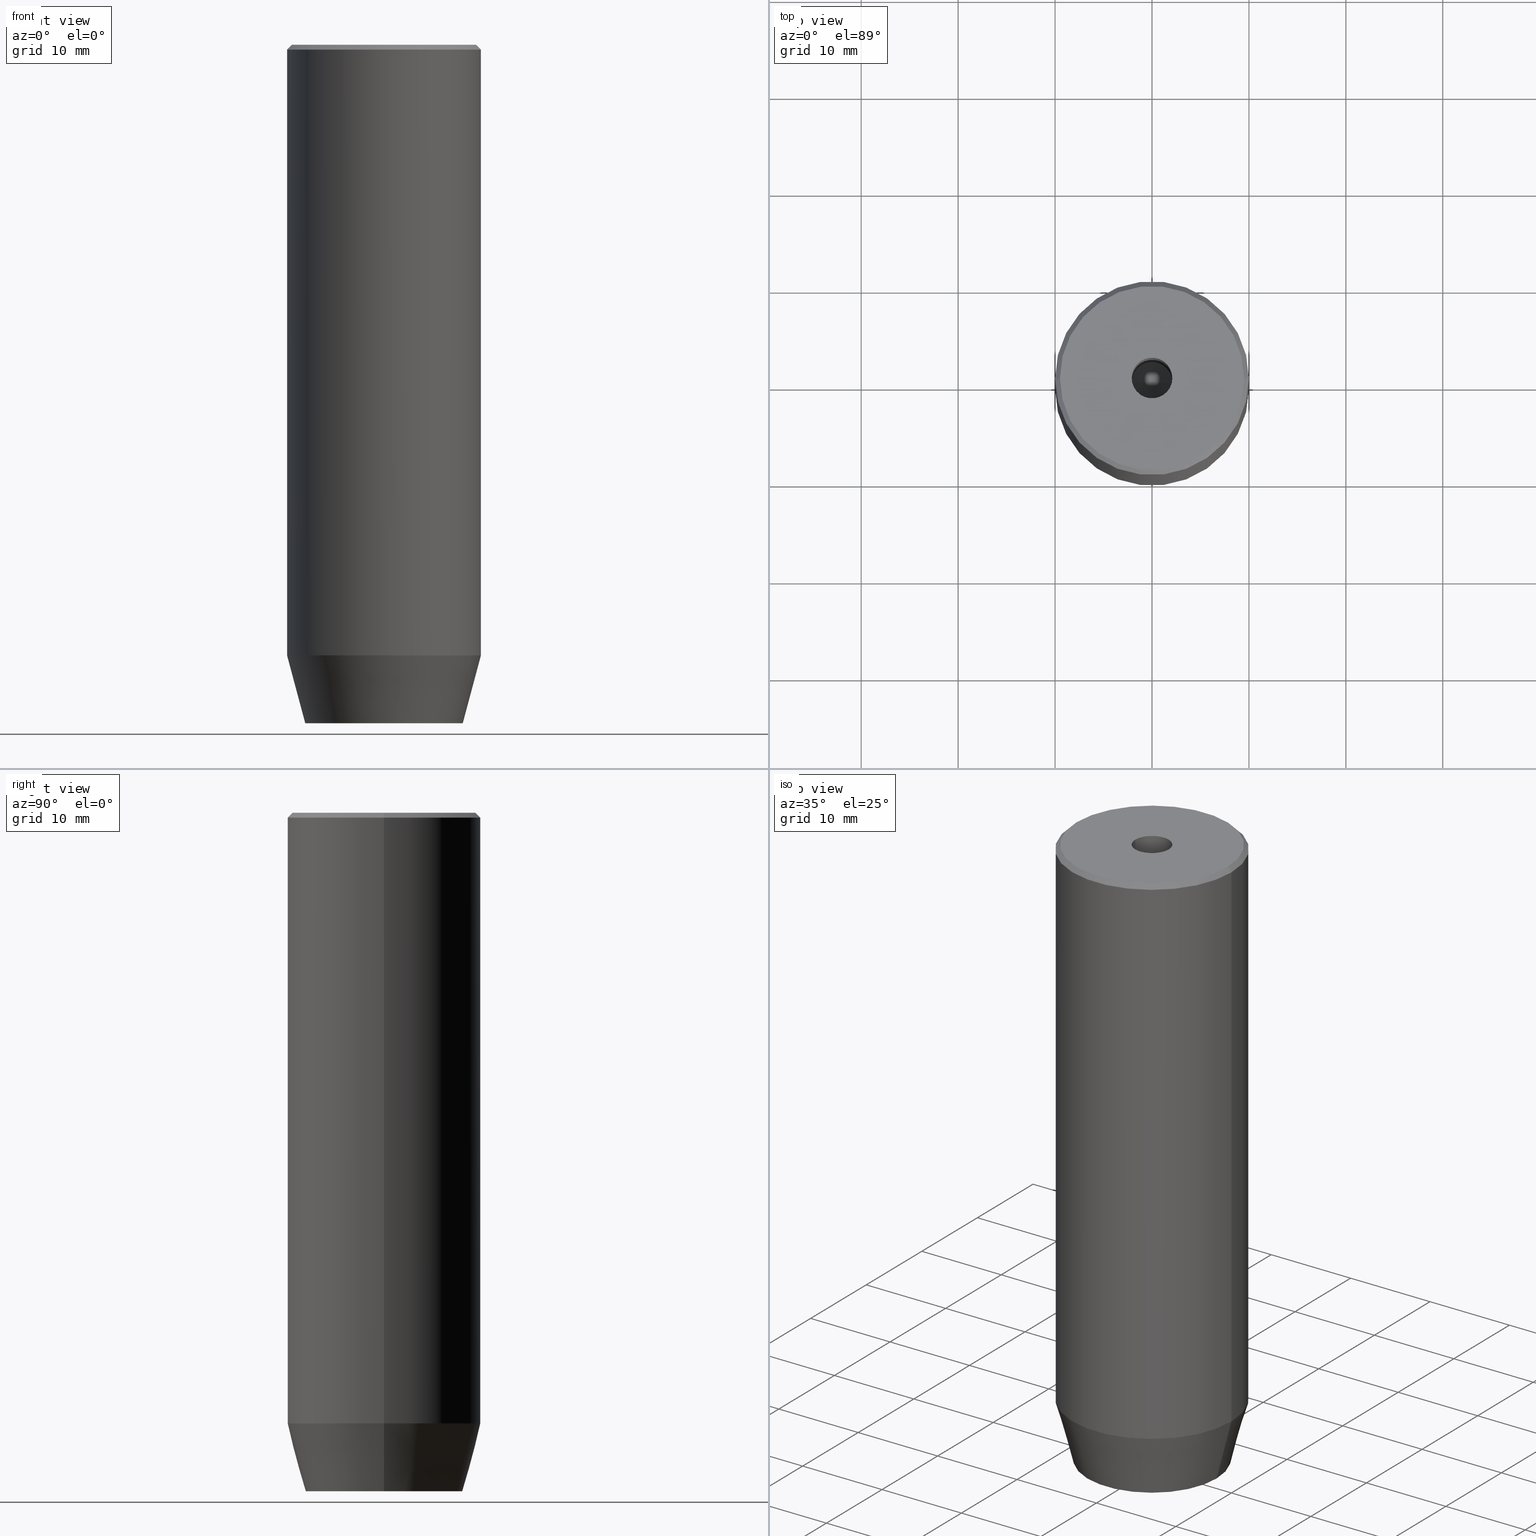
[diagram: canonical four-view strip — front | top / right | iso, engineering-drawing reading convention]
A machine part, canonical four-view strip (front | top / right | iso — engineering-drawing reading convention). The complete STEP part file that produces these views, byte-faithful:
ISO-10303-21;
HEADER;
FILE_DESCRIPTION (( 'STEP AP203' ),
    '1' );
FILE_NAME ('fe1a.STEP',
    '2024-01-02T19:06:16',
    ( '' ),
    ( '' ),
    'SwSTEP 2.0',
    'SolidWorks 2019',
    '' );
FILE_SCHEMA (( 'CONFIG_CONTROL_DESIGN' ));
ENDSEC;

DATA;
#1 = FACE_OUTER_BOUND ( 'NONE', #19, .T. ) ;
#2 = DIRECTION ( 'NONE',  ( 1.000000000000000000, 0.000000000000000000, 0.000000000000000000 ) ) ;
#3 = CARTESIAN_POINT ( 'NONE',  ( 4.000000000000000000, 0.000000000000000000, -70.00000000000000000 ) ) ;
#4 = LINE ( 'NONE', #438, #414 ) ;
#5 = VERTEX_POINT ( 'NONE', #530 ) ;
#6 = AXIS2_PLACEMENT_3D ( 'NONE', #398, #544, #2 ) ;
#7 = LINE ( 'NONE', #306, #576 ) ;
#8 = EDGE_LOOP ( 'NONE', ( #15, #422, #238 ) ) ;
#9 = DATE_TIME_ROLE ( 'creation_date' ) ;
#10 = DIRECTION ( 'NONE',  ( -0.000000000000000000, -0.000000000000000000, 1.000000000000000000 ) ) ;
#11 = PERSON ( 'NEUR�EN�', 'NEUR�EN�', 'NEUR�EN�', ('NEUR�EN�'), ('NEUR�EN�'), ('NEUR�EN�') ) ;
#12 = DIRECTION ( 'NONE',  ( -0.000000000000000000, -0.000000000000000000, 1.000000000000000000 ) ) ;
#13 = ORIENTED_EDGE ( 'NONE', *, *, #305, .T. ) ;
#14 = PRODUCT_DEFINITION ( 'NEZN�M�', '', #245, #535 ) ;
#15 = ORIENTED_EDGE ( 'NONE', *, *, #537, .F. ) ;
#16 = FACE_OUTER_BOUND ( 'NONE', #63, .T. ) ;
#17 = VERTEX_POINT ( 'NONE', #136 ) ;
#18 = CARTESIAN_POINT ( 'NONE',  ( 4.000000000000000000, 0.000000000000000000, -67.20000000000000284 ) ) ;
#19 = EDGE_LOOP ( 'NONE', ( #280, #480, #13, #341 ) ) ;
#20 = VECTOR ( 'NONE', #545, 1000.000000000000114 ) ;
#21 = EDGE_CURVE ( 'NONE', #17, #362, #302, .T. ) ;
#22 = DIRECTION ( 'NONE',  ( 1.000000000000000000, 0.000000000000000000, 0.000000000000000000 ) ) ;
#23 = EDGE_CURVE ( 'NONE', #227, #267, #385, .T. ) ;
#24 = EDGE_LOOP ( 'NONE', ( #180, #581, #41, #526, #49, #62 ) ) ;
#25 = DIRECTION ( 'NONE',  ( 1.000000000000000000, 0.000000000000000000, 0.000000000000000000 ) ) ;
#26 = ADVANCED_FACE ( 'NONE', ( #481 ), #431, .F. ) ;
#27 = PRODUCT_DEFINITION_SHAPE ( 'NONE', 'NONE',  #14 ) ;
#28 = AXIS2_PLACEMENT_3D ( 'NONE', #402, #12, #439 ) ;
#29 = DIRECTION ( 'NONE',  ( 1.000000000000000000, 0.000000000000000000, 0.000000000000000000 ) ) ;
#30 = ADVANCED_FACE ( 'NONE', ( #367, #457 ), #505, .T. ) ;
#31 = DIRECTION ( 'NONE',  ( 1.000000000000000000, 0.000000000000000000, 0.000000000000000000 ) ) ;
#32 = LINE ( 'NONE', #205, #372 ) ;
#33 = DIRECTION ( 'NONE',  ( 0.7071067811865525687, 8.659560562354995721E-17, -0.7071067811865425767 ) ) ;
#34 = CARTESIAN_POINT ( 'NONE',  ( 0.000000000000000000, 0.000000000000000000, -0.4999999999999917843 ) ) ;
#35 = DIRECTION ( 'NONE',  ( 0.000000000000000000, 1.000000000000000000, 0.000000000000000000 ) ) ;
#36 = AXIS2_PLACEMENT_3D ( 'NONE', #190, #547, #22 ) ;
#37 = ADVANCED_FACE ( 'NONE', ( #84 ), #208, .T. ) ;
#38 = VECTOR ( 'NONE', #33, 999.9999999999998863 ) ;
#39 = VERTEX_POINT ( 'NONE', #559 ) ;
#40 = ADVANCED_FACE ( 'NONE', ( #262 ), #163, .T. ) ;
#41 = ORIENTED_EDGE ( 'NONE', *, *, #353, .F. ) ;
#42 =( LENGTH_UNIT ( ) NAMED_UNIT ( * ) SI_UNIT ( .MILLI., .METRE. ) );
#43 = LINE ( 'NONE', #335, #338 ) ;
#44 = EDGE_CURVE ( 'NONE', #253, #206, #43, .T. ) ;
#45 = LINE ( 'NONE', #254, #399 ) ;
#46 = DIRECTION ( 'NONE',  ( -1.000000000000000000, 0.000000000000000000, 0.000000000000000000 ) ) ;
#47 = DIRECTION ( 'NONE',  ( 1.000000000000000000, 0.000000000000000000, 0.000000000000000000 ) ) ;
#48 = AXIS2_PLACEMENT_3D ( 'NONE', #316, #352, #241 ) ;
#49 = ORIENTED_EDGE ( 'NONE', *, *, #364, .F. ) ;
#50 = CONICAL_SURFACE ( 'NONE', #285, 10.00000000000000000, 0.2617993877991500740 ) ;
#51 = EDGE_CURVE ( 'NONE', #224, #17, #582, .T. ) ;
#52 = ORIENTED_EDGE ( 'NONE', *, *, #81, .F. ) ;
#53 = DIRECTION ( 'NONE',  ( 1.000000000000000000, 0.000000000000000000, 0.000000000000000000 ) ) ;
#54 = CARTESIAN_POINT ( 'NONE',  ( -4.000000000000000000, 2.309401076758503368, -67.20000000000000284 ) ) ;
#55 = ORIENTED_EDGE ( 'NONE', *, *, #44, .F. ) ;
#56 = DIRECTION ( 'NONE',  ( -0.000000000000000000, -0.000000000000000000, 1.000000000000000000 ) ) ;
#57 = EDGE_LOOP ( 'NONE', ( #541, #409, #498, #221 ) ) ;
#58 = DIRECTION ( 'NONE',  ( -0.000000000000000000, -0.000000000000000000, 1.000000000000000000 ) ) ;
#59 = DIRECTION ( 'NONE',  ( 1.000000000000000000, 0.000000000000000000, 0.000000000000000000 ) ) ;
#60 = VERTEX_POINT ( 'NONE', #299 ) ;
#61 = DATE_AND_TIME ( #68, #260 ) ;
#62 = ORIENTED_EDGE ( 'NONE', *, *, #231, .F. ) ;
#63 = EDGE_LOOP ( 'NONE', ( #104, #459, #223, #509 ) ) ;
#64 = CYLINDRICAL_SURFACE ( 'NONE', #6, 2.099999999999996980 ) ;
#65 = DIRECTION ( 'NONE',  ( -0.000000000000000000, -0.000000000000000000, 1.000000000000000000 ) ) ;
#66 = APPROVAL ( #313, 'NEUR�EN�' ) ;
#67 = VECTOR ( 'NONE', #427, 1000.000000000000000 ) ;
#68 = CALENDAR_DATE ( 2024, 2, 1 ) ;
#69 = AXIS2_PLACEMENT_3D ( 'NONE', #512, #556, #517 ) ;
#70 = CARTESIAN_POINT ( 'NONE',  ( -4.000000000000000000, 0.000000000000000000, -67.20000000000000284 ) ) ;
#71 = PLANE ( 'NONE',  #219 ) ;
#72 = CARTESIAN_POINT ( 'NONE',  ( -4.000000000000000000, -2.309401076758503368, -70.00000000000000000 ) ) ;
#73 = LINE ( 'NONE', #454, #296 ) ;
#74 = ORIENTED_EDGE ( 'NONE', *, *, #497, .F. ) ;
#75 = EDGE_LOOP ( 'NONE', ( #577, #450, #74, #174 ) ) ;
#76 = CARTESIAN_POINT ( 'NONE',  ( 4.336808689942017736E-16, -4.618802153517006737, -67.20000000000000284 ) ) ;
#77 = ORIENTED_EDGE ( 'NONE', *, *, #521, .T. ) ;
#78 = APPROVAL_ROLE ( '' ) ;
#79 = VERTEX_POINT ( 'NONE', #388 ) ;
#80 = ADVANCED_FACE ( 'NONE', ( #336 ), #524, .T. ) ;
#81 = EDGE_CURVE ( 'NONE', #79, #360, #263, .T. ) ;
#82 = EDGE_LOOP ( 'NONE', ( #308, #339, #504, #370 ) ) ;
#83 = DIRECTION ( 'NONE',  ( -0.000000000000000000, -0.000000000000000000, 1.000000000000000000 ) ) ;
#84 = FACE_OUTER_BOUND ( 'NONE', #244, .T. ) ;
#85 = LINE ( 'NONE', #413, #94 ) ;
#86 = CARTESIAN_POINT ( 'NONE',  ( 0.000000000000000000, 0.000000000000000000, -25.00000000000000000 ) ) ;
#87 = VECTOR ( 'NONE', #351, 1000.000000000000114 ) ;
#88 = EDGE_LOOP ( 'NONE', ( #471, #158, #436, #548 ) ) ;
#89 = DIRECTION ( 'NONE',  ( -0.000000000000000000, -0.000000000000000000, 1.000000000000000000 ) ) ;
#90 = ORIENTED_EDGE ( 'NONE', *, *, #261, .T. ) ;
#91 = FACE_OUTER_BOUND ( 'NONE', #82, .T. ) ;
#92 = CARTESIAN_POINT ( 'NONE',  ( 4.000000000000000000, -2.309401076758502480, -67.20000000000000284 ) ) ;
#93 = CC_DESIGN_PERSON_AND_ORGANIZATION_ASSIGNMENT ( #169, #437, ( #14 ) ) ;
#94 = VECTOR ( 'NONE', #240, 1000.000000000000000 ) ;
#95 = CIRCLE ( 'NONE', #570, 2.099999999999995648 ) ;
#96 = DIRECTION ( 'NONE',  ( -1.000000000000000000, 0.000000000000000000, -0.000000000000000000 ) ) ;
#97 = EDGE_CURVE ( 'NONE', #452, #102, #376, .T. ) ;
#98 = DIRECTION ( 'NONE',  ( 0.000000000000000000, -1.000000000000000000, 0.000000000000000000 ) ) ;
#99 = FACE_OUTER_BOUND ( 'NONE', #75, .T. ) ;
#100 = AXIS2_PLACEMENT_3D ( 'NONE', #178, #346, #312 ) ;
#101 = CARTESIAN_POINT ( 'NONE',  ( 0.000000000000000000, 0.000000000000000000, -63.00000000000000000 ) ) ;
#102 = VERTEX_POINT ( 'NONE', #168 ) ;
#103 = CALENDAR_DATE ( 2024, 2, 1 ) ;
#104 = ORIENTED_EDGE ( 'NONE', *, *, #137, .F. ) ;
#105 = FACE_OUTER_BOUND ( 'NONE', #462, .T. ) ;
#106 = CARTESIAN_POINT ( 'NONE',  ( 2.168404344971008868E-16, 4.618802153517005848, -70.00000000000000000 ) ) ;
#107 = CONICAL_SURFACE ( 'NONE', #324, 2.099999999999995648, 1.029744258676651647 ) ;
#108 = ORIENTED_EDGE ( 'NONE', *, *, #510, .F. ) ;
#109 = CC_DESIGN_APPROVAL ( #288, ( #245 ) ) ;
#110 = LINE ( 'NONE', #18, #373 ) ;
#111 = LINE ( 'NONE', #76, #118 ) ;
#112 = ADVANCED_FACE ( 'NONE', ( #467 ), #256, .F. ) ;
#113 = EDGE_LOOP ( 'NONE', ( #384, #303, #149, #77 ) ) ;
#114 = EDGE_LOOP ( 'NONE', ( #482, #425, #249, #55 ) ) ;
#115 = ORIENTED_EDGE ( 'NONE', *, *, #343, .T. ) ;
#116 = EDGE_CURVE ( 'NONE', #60, #525, #563, .T. ) ;
#117 = EDGE_LOOP ( 'NONE', ( #382, #347 ) ) ;
#118 = VECTOR ( 'NONE', #574, 1000.000000000000000 ) ;
#119 = VECTOR ( 'NONE', #284, 999.9999999999998863 ) ;
#120 = PERSON_AND_ORGANIZATION ( #11, #472 ) ;
#121 = ADVANCED_FACE ( 'NONE', ( #154, #515 ), #536, .T. ) ;
#122 = FACE_OUTER_BOUND ( 'NONE', #295, .T. ) ;
#123 = DIRECTION ( 'NONE',  ( -0.5000000000000003331, -0.8660254037844385966, 0.000000000000000000 ) ) ;
#124 = LINE ( 'NONE', #417, #38 ) ;
#125 = ORIENTED_EDGE ( 'NONE', *, *, #375, .F. ) ;
#126 = VECTOR ( 'NONE', #469, 1000.000000000000000 ) ;
#127 = CARTESIAN_POINT ( 'NONE',  ( 0.000000000000000000, 0.000000000000000000, -63.00000000000000000 ) ) ;
#128 = CONICAL_SURFACE ( 'NONE', #196, 2.099999999999995648, 1.029744258676651647 ) ;
#129 = CARTESIAN_POINT ( 'NONE',  ( 0.000000000000000000, 0.000000000000000000, 0.000000000000000000 ) ) ;
#130 = ADVANCED_FACE ( 'NONE', ( #175 ), #107, .F. ) ;
#131 = DIRECTION ( 'NONE',  ( -0.000000000000000000, -0.000000000000000000, 1.000000000000000000 ) ) ;
#132 = CONICAL_SURFACE ( 'NONE', #282, 9.500000000000001776, 0.7853981633974552734 ) ;
#133 = EDGE_CURVE ( 'NONE', #525, #206, #217, .T. ) ;
#134 = LOCAL_TIME ( 20, 6, 16.00000000000000000, #565 ) ;
#135 = CARTESIAN_POINT ( 'NONE',  ( 0.000000000000000000, 0.000000000000000000, -1.990051048614449116E-16 ) ) ;
#136 = CARTESIAN_POINT ( 'NONE',  ( 4.000000000000000000, -2.309401076758502480, -70.00000000000000000 ) ) ;
#137 = EDGE_CURVE ( 'NONE', #176, #139, #527, .T. ) ;
#138 = DIRECTION ( 'NONE',  ( -0.000000000000000000, -0.000000000000000000, 1.000000000000000000 ) ) ;
#139 = VERTEX_POINT ( 'NONE', #390 ) ;
#140 = AXIS2_PLACEMENT_3D ( 'NONE', #424, #131, #331 ) ;
#141 = DATE_AND_TIME ( #143, #186 ) ;
#142 = EDGE_CURVE ( 'NONE', #139, #195, #586, .T. ) ;
#143 = CALENDAR_DATE ( 2024, 2, 1 ) ;
#144 = DIRECTION ( 'NONE',  ( -0.8571673007021108903, 1.049727191138616847E-16, 0.5150380749100565980 ) ) ;
#145 = CARTESIAN_POINT ( 'NONE',  ( 9.500000000000001776, 1.194030629168669469E-15, 0.000000000000000000 ) ) ;
#146 = CARTESIAN_POINT ( 'NONE',  ( 0.000000000000000000, 0.000000000000000000, -70.00000000000000000 ) ) ;
#147 = EDGE_CURVE ( 'NONE', #531, #79, #345, .T. ) ;
#148 = AXIS2_PLACEMENT_3D ( 'NONE', #146, #304, #59 ) ;
#149 = ORIENTED_EDGE ( 'NONE', *, *, #434, .F. ) ;
#150 =( GEOMETRIC_REPRESENTATION_CONTEXT ( 3 ) GLOBAL_UNCERTAINTY_ASSIGNED_CONTEXT ( ( #307 ) ) GLOBAL_UNIT_ASSIGNED_CONTEXT ( ( #42, #479, #488 ) ) REPRESENTATION_CONTEXT ( 'NONE', 'WORKASPACE' ) );
#151 = EDGE_CURVE ( 'NONE', #232, #5, #540, .T. ) ;
#152 = ORIENTED_EDGE ( 'NONE', *, *, #247, .T. ) ;
#153 = PERSON_AND_ORGANIZATION_ROLE ( 'classification_officer' ) ;
#154 = FACE_BOUND ( 'NONE', #551, .T. ) ;
#155 = LINE ( 'NONE', #513, #349 ) ;
#156 = PERSON_AND_ORGANIZATION ( #11, #472 ) ;
#157 = CC_DESIGN_PERSON_AND_ORGANIZATION_ASSIGNMENT ( #552, #153, ( #555 ) ) ;
#158 = ORIENTED_EDGE ( 'NONE', *, *, #484, .F. ) ;
#159 = CARTESIAN_POINT ( 'NONE',  ( 4.000000000000000000, 2.309401076758503368, -67.20000000000000284 ) ) ;
#160 = DIRECTION ( 'NONE',  ( -0.000000000000000000, -0.000000000000000000, 1.000000000000000000 ) ) ;
#161 = AXIS2_PLACEMENT_3D ( 'NONE', #369, #564, #235 ) ;
#162 = CARTESIAN_POINT ( 'NONE',  ( -2.000000000000000888, -3.464101615137754386, -67.20000000000000284 ) ) ;
#163 = CYLINDRICAL_SURFACE ( 'NONE', #140, 10.00000000000000000 ) ;
#164 = CC_DESIGN_APPROVAL ( #66, ( #555 ) ) ;
#165 = EDGE_CURVE ( 'NONE', #224, #232, #4, .T. ) ;
#166 = DIRECTION ( 'NONE',  ( 1.000000000000000000, 0.000000000000000000, 0.000000000000000000 ) ) ;
#167 = ORIENTED_EDGE ( 'NONE', *, *, #165, .T. ) ;
#168 = CARTESIAN_POINT ( 'NONE',  ( 10.00000000000000000, 0.000000000000000000, -63.00000000000000000 ) ) ;
#169 = PERSON_AND_ORGANIZATION ( #11, #472 ) ;
#170 = ORIENTED_EDGE ( 'NONE', *, *, #323, .F. ) ;
#171 = ORIENTED_EDGE ( 'NONE', *, *, #323, .T. ) ;
#172 = DIRECTION ( 'NONE',  ( -0.000000000000000000, -0.000000000000000000, -1.000000000000000000 ) ) ;
#173 = CIRCLE ( 'NONE', #28, 8.124355652982135467 ) ;
#174 = ORIENTED_EDGE ( 'NONE', *, *, #193, .T. ) ;
#175 = FACE_OUTER_BOUND ( 'NONE', #8, .T. ) ;
#176 = VERTEX_POINT ( 'NONE', #145 ) ;
#177 = CARTESIAN_POINT ( 'NONE',  ( -9.500000000000001776, 0.000000000000000000, 0.000000000000000000 ) ) ;
#178 = CARTESIAN_POINT ( 'NONE',  ( 0.000000000000000000, 0.000000000000000000, 0.000000000000000000 ) ) ;
#179 = DIRECTION ( 'NONE',  ( -0.5000000000000000000, 0.8660254037844387076, 0.000000000000000000 ) ) ;
#180 = ORIENTED_EDGE ( 'NONE', *, *, #401, .F. ) ;
#181 = ORIENTED_EDGE ( 'NONE', *, *, #151, .T. ) ;
#182 = LINE ( 'NONE', #348, #377 ) ;
#183 = DIRECTION ( 'NONE',  ( 0.000000000000000000, -1.000000000000000000, 0.000000000000000000 ) ) ;
#184 = VECTOR ( 'NONE', #172, 1000.000000000000000 ) ;
#185 = CC_DESIGN_PERSON_AND_ORGANIZATION_ASSIGNMENT ( #561, #203, ( #245 ) ) ;
#186 = LOCAL_TIME ( 20, 6, 16.00000000000000000, #228 ) ;
#187 = DIRECTION ( 'NONE',  ( 1.000000000000000000, 0.000000000000000000, 0.000000000000000000 ) ) ;
#188 = LINE ( 'NONE', #225, #340 ) ;
#189 = ORIENTED_EDGE ( 'NONE', *, *, #573, .T. ) ;
#190 = CARTESIAN_POINT ( 'NONE',  ( 0.000000000000000000, 0.000000000000000000, 0.000000000000000000 ) ) ;
#191 = ORIENTED_EDGE ( 'NONE', *, *, #81, .T. ) ;
#192 = CARTESIAN_POINT ( 'NONE',  ( 2.099999999999995648, 0.000000000000000000, -25.00000000000000000 ) ) ;
#193 = EDGE_CURVE ( 'NONE', #5, #580, #73, .T. ) ;
#194 = CLOSED_SHELL ( 'NONE', ( #383, #489, #549, #458, #37, #30, #121, #40, #329, #315, #26, #395, #112, #406, #411, #465, #80, #130, #404 ) ) ;
#195 = VERTEX_POINT ( 'NONE', #320 ) ;
#196 = AXIS2_PLACEMENT_3D ( 'NONE', #86, #416, #29 ) ;
#197 = DIRECTION ( 'NONE',  ( -1.000000000000000000, 0.000000000000000000, -0.000000000000000000 ) ) ;
#198 = CARTESIAN_POINT ( 'NONE',  ( 2.099999999999998757, 0.000000000000000000, -1.990051048614449116E-16 ) ) ;
#199 = APPLICATION_CONTEXT ( 'configuration controlled 3d designs of mechanical parts and assemblies' ) ;
#200 = APPROVAL_DATE_TIME ( #410, #288 ) ;
#201 = ORIENTED_EDGE ( 'NONE', *, *, #518, .F. ) ;
#202 = DIRECTION ( 'NONE',  ( 0.000000000000000000, 0.000000000000000000, -1.000000000000000000 ) ) ;
#203 = PERSON_AND_ORGANIZATION_ROLE ( 'creator' ) ;
#204 = APPLICATION_PROTOCOL_DEFINITION ( 'international standard', 'config_control_design', 1994, #366 ) ;
#205 = CARTESIAN_POINT ( 'NONE',  ( -10.00000000000000000, 1.224646799147353256E-15, -63.00000000000000000 ) ) ;
#206 = VERTEX_POINT ( 'NONE', #198 ) ;
#207 = DIRECTION ( 'NONE',  ( -0.8660254037844385966, 0.5000000000000001110, 0.000000000000000000 ) ) ;
#208 = CYLINDRICAL_SURFACE ( 'NONE', #48, 10.00000000000000000 ) ;
#209 = APPROVAL_PERSON_ORGANIZATION ( #120, #288, #448 ) ;
#210 = CARTESIAN_POINT ( 'NONE',  ( 2.000000000000000444, 3.464101615137754386, -67.20000000000000284 ) ) ;
#211 = EDGE_CURVE ( 'NONE', #428, #195, #251, .T. ) ;
#212 = ORIENTED_EDGE ( 'NONE', *, *, #23, .F. ) ;
#213 = CARTESIAN_POINT ( 'NONE',  ( 0.000000000000000000, 0.000000000000000000, -63.00000000000000000 ) ) ;
#214 = CARTESIAN_POINT ( 'NONE',  ( -4.000000000000000000, 2.309401076758503368, -67.20000000000000284 ) ) ;
#215 = CC_DESIGN_PERSON_AND_ORGANIZATION_ASSIGNMENT ( #449, #405, ( #245 ) ) ;
#216 = DATE_TIME_ROLE ( 'classification_date' ) ;
#217 = CIRCLE ( 'NONE', #333, 2.099999999999998757 ) ;
#218 = DIRECTION ( 'NONE',  ( -0.000000000000000000, -0.000000000000000000, 1.000000000000000000 ) ) ;
#219 = AXIS2_PLACEMENT_3D ( 'NONE', #583, #392, #230 ) ;
#220 = EDGE_CURVE ( 'NONE', #139, #176, #242, .T. ) ;
#221 = ORIENTED_EDGE ( 'NONE', *, *, #239, .T. ) ;
#222 = AXIS2_PLACEMENT_3D ( 'NONE', #378, #478, #96 ) ;
#223 = ORIENTED_EDGE ( 'NONE', *, *, #445, .F. ) ;
#224 = VERTEX_POINT ( 'NONE', #363 ) ;
#225 = CARTESIAN_POINT ( 'NONE',  ( -2.099999999999995648, 2.571758278209436040E-16, -25.00000000000000000 ) ) ;
#226 = CARTESIAN_POINT ( 'NONE',  ( -2.000000000000000000, 3.464101615137754830, -67.20000000000000284 ) ) ;
#227 = VERTEX_POINT ( 'NONE', #359 ) ;
#228 = COORDINATED_UNIVERSAL_TIME_OFFSET ( 1, 0, .AHEAD. ) ;
#229 = CARTESIAN_POINT ( 'NONE',  ( -2.000000000000000888, -3.464101615137754386, -67.20000000000000284 ) ) ;
#230 = DIRECTION ( 'NONE',  ( 0.8660254037844384856, 0.5000000000000002220, 0.000000000000000000 ) ) ;
#231 = EDGE_CURVE ( 'NONE', #572, #360, #155, .T. ) ;
#232 = VERTEX_POINT ( 'NONE', #502 ) ;
#233 = CARTESIAN_POINT ( 'NONE',  ( 0.000000000000000000, 0.000000000000000000, 0.000000000000000000 ) ) ;
#234 = VECTOR ( 'NONE', #523, 1000.000000000000000 ) ;
#235 = DIRECTION ( 'NONE',  ( 1.000000000000000000, 0.000000000000000000, 0.000000000000000000 ) ) ;
#236 = DIRECTION ( 'NONE',  ( 0.000000000000000000, 1.000000000000000000, 0.000000000000000000 ) ) ;
#237 = CARTESIAN_POINT ( 'NONE',  ( 0.000000000000000000, 0.000000000000000000, -1.990051048614449116E-16 ) ) ;
#238 = ORIENTED_EDGE ( 'NONE', *, *, #484, .T. ) ;
#239 = EDGE_CURVE ( 'NONE', #232, #362, #111, .T. ) ;
#240 = DIRECTION ( 'NONE',  ( -0.000000000000000000, -0.000000000000000000, 1.000000000000000000 ) ) ;
#241 = DIRECTION ( 'NONE',  ( 1.000000000000000000, 0.000000000000000000, 0.000000000000000000 ) ) ;
#242 = CIRCLE ( 'NONE', #36, 9.500000000000001776 ) ;
#243 = AXIS2_PLACEMENT_3D ( 'NONE', #101, #499, #344 ) ;
#244 = EDGE_LOOP ( 'NONE', ( #171, #271, #380, #283 ) ) ;
#245 = PRODUCT_DEFINITION_FORMATION_WITH_SPECIFIED_SOURCE ( 'LIBOVOLN�', '', #337, .NOT_KNOWN. ) ;
#246 = CALENDAR_DATE ( 2024, 2, 1 ) ;
#247 = EDGE_CURVE ( 'NONE', #227, #452, #32, .T. ) ;
#248 = ORIENTED_EDGE ( 'NONE', *, *, #434, .T. ) ;
#249 = ORIENTED_EDGE ( 'NONE', *, *, #133, .T. ) ;
#250 = APPROVAL_STATUS ( 'not_yet_approved' ) ;
#251 = CIRCLE ( 'NONE', #161, 10.00000000000000000 ) ;
#252 = EDGE_CURVE ( 'NONE', #102, #428, #85, .T. ) ;
#253 = VERTEX_POINT ( 'NONE', #473 ) ;
#254 = CARTESIAN_POINT ( 'NONE',  ( -4.000000000000000000, 0.000000000000000000, -70.00000000000000000 ) ) ;
#255 = DIRECTION ( 'NONE',  ( -1.000000000000000000, 0.000000000000000000, 0.000000000000000000 ) ) ;
#256 = PLANE ( 'NONE',  #500 ) ;
#257 = ORIENTED_EDGE ( 'NONE', *, *, #364, .T. ) ;
#258 = VECTOR ( 'NONE', #314, 1000.000000000000000 ) ;
#259 = CARTESIAN_POINT ( 'NONE',  ( 0.000000000000000000, 0.000000000000000000, -63.00000000000000000 ) ) ;
#260 = LOCAL_TIME ( 20, 6, 16.00000000000000000, #492 ) ;
#261 = EDGE_CURVE ( 'NONE', #531, #572, #298, .T. ) ;
#262 = FACE_OUTER_BOUND ( 'NONE', #397, .T. ) ;
#263 = LINE ( 'NONE', #159, #126 ) ;
#264 = ADVANCED_BREP_SHAPE_REPRESENTATION ( 'fe1a', ( #441, #408 ), #150 ) ;
#265 = ORIENTED_EDGE ( 'NONE', *, *, #587, .F. ) ;
#266 = EDGE_CURVE ( 'NONE', #580, #39, #45, .T. ) ;
#267 = VERTEX_POINT ( 'NONE', #418 ) ;
#268 = CARTESIAN_POINT ( 'NONE',  ( 2.000000000000000444, 3.464101615137754386, -67.20000000000000284 ) ) ;
#269 = DATE_AND_TIME ( #103, #514 ) ;
#270 = FACE_OUTER_BOUND ( 'NONE', #114, .T. ) ;
#271 = ORIENTED_EDGE ( 'NONE', *, *, #518, .T. ) ;
#272 = LINE ( 'NONE', #70, #423 ) ;
#273 = CARTESIAN_POINT ( 'NONE',  ( 4.000000000000000000, 2.309401076758503368, -70.00000000000000000 ) ) ;
#274 = DIRECTION ( 'NONE',  ( -0.8660254037844385966, -0.4999999999999999445, 0.000000000000000000 ) ) ;
#275 = FACE_OUTER_BOUND ( 'NONE', #88, .T. ) ;
#276 = VECTOR ( 'NONE', #435, 999.9999999999998863 ) ;
#277 = CARTESIAN_POINT ( 'NONE',  ( -2.099999999999998757, 2.571758278209440478E-16, -1.990051048614449116E-16 ) ) ;
#278 = CIRCLE ( 'NONE', #327, 2.099999999999998757 ) ;
#279 = EDGE_LOOP ( 'NONE', ( #125, #543, #189 ) ) ;
#280 = ORIENTED_EDGE ( 'NONE', *, *, #247, .F. ) ;
#281 = PERSON_AND_ORGANIZATION ( #11, #472 ) ;
#282 = AXIS2_PLACEMENT_3D ( 'NONE', #129, #466, #255 ) ;
#283 = ORIENTED_EDGE ( 'NONE', *, *, #252, .F. ) ;
#284 = DIRECTION ( 'NONE',  ( 0.8660254037844387076, 0.5000000000000001110, 0.000000000000000000 ) ) ;
#285 = AXIS2_PLACEMENT_3D ( 'NONE', #213, #516, #374 ) ;
#286 = CALENDAR_DATE ( 2024, 2, 1 ) ;
#287 = PERSON_AND_ORGANIZATION_ROLE ( 'design_owner' ) ;
#288 = APPROVAL ( #558, 'NEUR�EN�' ) ;
#289 = VERTEX_POINT ( 'NONE', #214 ) ;
#290 = AXIS2_PLACEMENT_3D ( 'NONE', #403, #562, #197 ) ;
#291 = APPROVAL_PERSON_ORGANIZATION ( #281, #66, #78 ) ;
#292 = ORIENTED_EDGE ( 'NONE', *, *, #252, .T. ) ;
#293 = FACE_OUTER_BOUND ( 'NONE', #321, .T. ) ;
#294 = CARTESIAN_POINT ( 'NONE',  ( 10.00000000000000000, 0.000000000000000000, -63.00000000000000000 ) ) ;
#295 = EDGE_LOOP ( 'NONE', ( #557, #52, #475, #90 ) ) ;
#296 = VECTOR ( 'NONE', #356, 1000.000000000000000 ) ;
#297 = CC_DESIGN_APPROVAL ( #379, ( #14 ) ) ;
#298 = LINE ( 'NONE', #477, #67 ) ;
#299 = CARTESIAN_POINT ( 'NONE',  ( -2.099999999999995648, 2.571758278209436040E-16, -25.00000000000000000 ) ) ;
#300 = CARTESIAN_POINT ( 'NONE',  ( 0.000000000000000000, 0.000000000000000000, -25.00000000000000000 ) ) ;
#301 = CARTESIAN_POINT ( 'NONE',  ( 0.000000000000000000, 0.000000000000000000, -25.00000000000000000 ) ) ;
#302 = LINE ( 'NONE', #355, #87 ) ;
#303 = ORIENTED_EDGE ( 'NONE', *, *, #261, .F. ) ;
#304 = DIRECTION ( 'NONE',  ( -0.000000000000000000, -0.000000000000000000, 1.000000000000000000 ) ) ;
#305 = EDGE_CURVE ( 'NONE', #267, #102, #420, .T. ) ;
#306 = CARTESIAN_POINT ( 'NONE',  ( -2.000000000000000888, -3.464101615137754386, -70.00000000000000000 ) ) ;
#307 = UNCERTAINTY_MEASURE_WITH_UNIT (LENGTH_MEASURE( 1.000000000000000082E-05 ), #42, 'distance_accuracy_value', 'NONE');
#308 = ORIENTED_EDGE ( 'NONE', *, *, #421, .F. ) ;
#309 = CARTESIAN_POINT ( 'NONE',  ( -4.000000000000000000, 0.000000000000000000, -67.20000000000000284 ) ) ;
#310 = VECTOR ( 'NONE', #183, 1000.000000000000000 ) ;
#311 = CARTESIAN_POINT ( 'NONE',  ( 0.000000000000000000, 0.000000000000000000, 0.000000000000000000 ) ) ;
#312 = DIRECTION ( 'NONE',  ( -1.000000000000000000, 0.000000000000000000, 0.000000000000000000 ) ) ;
#313 = APPROVAL_STATUS ( 'not_yet_approved' ) ;
#314 = DIRECTION ( 'NONE',  ( 0.8660254037844385966, -0.5000000000000001110, 0.000000000000000000 ) ) ;
#315 = ADVANCED_FACE ( 'NONE', ( #91 ), #132, .T. ) ;
#316 = CARTESIAN_POINT ( 'NONE',  ( 0.000000000000000000, 0.000000000000000000, 0.000000000000000000 ) ) ;
#317 = DIRECTION ( 'NONE',  ( 0.8660254037844385966, -0.5000000000000001110, 0.000000000000000000 ) ) ;
#318 = CIRCLE ( 'NONE', #444, 2.099999999999995648 ) ;
#319 = EDGE_LOOP ( 'NONE', ( #248, #468, #115, #167, #181, #332 ) ) ;
#320 = CARTESIAN_POINT ( 'NONE',  ( -10.00000000000000000, 1.224646799147353256E-15, -0.4999999999999917843 ) ) ;
#321 = EDGE_LOOP ( 'NONE', ( #464, #152, #170, #325 ) ) ;
#322 = COORDINATED_UNIVERSAL_TIME_OFFSET ( 1, 0, .AHEAD. ) ;
#323 = EDGE_CURVE ( 'NONE', #102, #452, #568, .T. ) ;
#324 = AXIS2_PLACEMENT_3D ( 'NONE', #300, #65, #53 ) ;
#325 = ORIENTED_EDGE ( 'NONE', *, *, #305, .F. ) ;
#326 = CARTESIAN_POINT ( 'NONE',  ( -10.00000000000000000, 1.224646799147353256E-15, -63.00000000000000000 ) ) ;
#327 = AXIS2_PLACEMENT_3D ( 'NONE', #237, #56, #386 ) ;
#328 = DIRECTION ( 'NONE',  ( 1.000000000000000000, 0.000000000000000000, 0.000000000000000000 ) ) ;
#329 = ADVANCED_FACE ( 'NONE', ( #1 ), #485, .T. ) ;
#330 = CARTESIAN_POINT ( 'NONE',  ( 0.000000000000000000, 0.000000000000000000, -25.00000000000000000 ) ) ;
#331 = DIRECTION ( 'NONE',  ( 1.000000000000000000, 0.000000000000000000, 0.000000000000000000 ) ) ;
#332 = ORIENTED_EDGE ( 'NONE', *, *, #497, .T. ) ;
#333 = AXIS2_PLACEMENT_3D ( 'NONE', #135, #58, #342 ) ;
#334 = CONICAL_SURFACE ( 'NONE', #100, 9.500000000000001776, 0.7853981633974552734 ) ;
#335 = CARTESIAN_POINT ( 'NONE',  ( 2.099999999999996980, 0.000000000000000000, 0.000000000000000000 ) ) ;
#336 = FACE_OUTER_BOUND ( 'NONE', #319, .T. ) ;
#337 = PRODUCT ( 'fe1a', 'fe1a', '', ( #567 ) ) ;
#338 = VECTOR ( 'NONE', #89, 1000.000000000000000 ) ;
#339 = ORIENTED_EDGE ( 'NONE', *, *, #220, .F. ) ;
#340 = VECTOR ( 'NONE', #144, 1000.000000000000114 ) ;
#341 = ORIENTED_EDGE ( 'NONE', *, *, #97, .F. ) ;
#342 = DIRECTION ( 'NONE',  ( 1.000000000000000000, 0.000000000000000000, 0.000000000000000000 ) ) ;
#343 = EDGE_CURVE ( 'NONE', #79, #224, #110, .T. ) ;
#344 = DIRECTION ( 'NONE',  ( 1.000000000000000000, 0.000000000000000000, 0.000000000000000000 ) ) ;
#345 = LINE ( 'NONE', #268, #258 ) ;
#346 = DIRECTION ( 'NONE',  ( 0.000000000000000000, 0.000000000000000000, -1.000000000000000000 ) ) ;
#347 = ORIENTED_EDGE ( 'NONE', *, *, #137, .T. ) ;
#348 = CARTESIAN_POINT ( 'NONE',  ( -2.000000000000000000, 3.464101615137754830, -70.00000000000000000 ) ) ;
#349 = VECTOR ( 'NONE', #317, 1000.000000000000000 ) ;
#350 = DIRECTION ( 'NONE',  ( 1.000000000000000000, 0.000000000000000000, 0.000000000000000000 ) ) ;
#351 = DIRECTION ( 'NONE',  ( -0.8660254037844384856, -0.5000000000000002220, 0.000000000000000000 ) ) ;
#352 = DIRECTION ( 'NONE',  ( -0.000000000000000000, -0.000000000000000000, 1.000000000000000000 ) ) ;
#353 = EDGE_CURVE ( 'NONE', #362, #580, #7, .T. ) ;
#354 = ORIENTED_EDGE ( 'NONE', *, *, #239, .F. ) ;
#355 = CARTESIAN_POINT ( 'NONE',  ( 2.000000000000000888, -3.464101615137754386, -70.00000000000000000 ) ) ;
#356 = DIRECTION ( 'NONE',  ( -0.000000000000000000, -0.000000000000000000, -1.000000000000000000 ) ) ;
#357 = EDGE_LOOP ( 'NONE', ( #108, #212 ) ) ;
#358 = ORIENTED_EDGE ( 'NONE', *, *, #165, .F. ) ;
#359 = CARTESIAN_POINT ( 'NONE',  ( -8.124355652982135467, 1.109796706851640556E-15, -70.00000000000000000 ) ) ;
#360 = VERTEX_POINT ( 'NONE', #273 ) ;
#361 = SECURITY_CLASSIFICATION_LEVEL ( 'unclassified' ) ;
#362 = VERTEX_POINT ( 'NONE', #371 ) ;
#363 = CARTESIAN_POINT ( 'NONE',  ( 4.000000000000000000, -2.309401076758502480, -67.20000000000000284 ) ) ;
#364 = EDGE_CURVE ( 'NONE', #360, #17, #433, .T. ) ;
#365 = ORIENTED_EDGE ( 'NONE', *, *, #51, .F. ) ;
#366 = APPLICATION_CONTEXT ( 'configuration controlled 3d designs of mechanical parts and assemblies' ) ;
#367 = FACE_BOUND ( 'NONE', #24, .T. ) ;
#368 = DIRECTION ( 'NONE',  ( 0.8660254037844384856, -0.5000000000000002220, 0.000000000000000000 ) ) ;
#369 = CARTESIAN_POINT ( 'NONE',  ( 0.000000000000000000, 0.000000000000000000, -0.4999999999999917843 ) ) ;
#370 = ORIENTED_EDGE ( 'NONE', *, *, #211, .F. ) ;
#371 = CARTESIAN_POINT ( 'NONE',  ( 4.336808689942017736E-16, -4.618802153517006737, -70.00000000000000000 ) ) ;
#372 = VECTOR ( 'NONE', #451, 1000.000000000000000 ) ;
#373 = VECTOR ( 'NONE', #98, 1000.000000000000000 ) ;
#374 = DIRECTION ( 'NONE',  ( 1.000000000000000000, 0.000000000000000000, 0.000000000000000000 ) ) ;
#375 = EDGE_CURVE ( 'NONE', #432, #253, #496, .T. ) ;
#376 = CIRCLE ( 'NONE', #553, 10.00000000000000000 ) ;
#377 = VECTOR ( 'NONE', #539, 999.9999999999998863 ) ;
#378 = CARTESIAN_POINT ( 'NONE',  ( 0.000000000000000000, 0.000000000000000000, -67.20000000000000284 ) ) ;
#379 = APPROVAL ( #250, 'NEUR�EN�' ) ;
#380 = ORIENTED_EDGE ( 'NONE', *, *, #445, .T. ) ;
#381 = DIRECTION ( 'NONE',  ( -0.000000000000000000, -0.000000000000000000, 1.000000000000000000 ) ) ;
#382 = ORIENTED_EDGE ( 'NONE', *, *, #220, .T. ) ;
#383 = ADVANCED_FACE ( 'NONE', ( #270 ), #64, .F. ) ;
#384 = ORIENTED_EDGE ( 'NONE', *, *, #401, .T. ) ;
#385 = CIRCLE ( 'NONE', #148, 8.124355652982135467 ) ;
#386 = DIRECTION ( 'NONE',  ( 1.000000000000000000, 0.000000000000000000, 0.000000000000000000 ) ) ;
#387 = PRODUCT_RELATED_PRODUCT_CATEGORY ( 'detail', '', ( #337 ) ) ;
#388 = CARTESIAN_POINT ( 'NONE',  ( 4.000000000000000000, 2.309401076758503368, -67.20000000000000284 ) ) ;
#389 = CARTESIAN_POINT ( 'NONE',  ( 0.000000000000000000, 0.000000000000000000, 0.000000000000000000 ) ) ;
#390 = CARTESIAN_POINT ( 'NONE',  ( -9.500000000000001776, 0.000000000000000000, 0.000000000000000000 ) ) ;
#391 = DIRECTION ( 'NONE',  ( -0.000000000000000000, -0.000000000000000000, -1.000000000000000000 ) ) ;
#392 = DIRECTION ( 'NONE',  ( 0.5000000000000003331, -0.8660254037844385966, 0.000000000000000000 ) ) ;
#393 = ORIENTED_EDGE ( 'NONE', *, *, #51, .T. ) ;
#394 = DIRECTION ( 'NONE',  ( -0.8660254037844384856, 0.5000000000000002220, 0.000000000000000000 ) ) ;
#395 = ADVANCED_FACE ( 'NONE', ( #99 ), #495, .F. ) ;
#396 = SHAPE_DEFINITION_REPRESENTATION ( #27, #264 ) ;
#397 = EDGE_LOOP ( 'NONE', ( #201, #506, #292, #554 ) ) ;
#398 = CARTESIAN_POINT ( 'NONE',  ( 0.000000000000000000, 0.000000000000000000, 0.000000000000000000 ) ) ;
#399 = VECTOR ( 'NONE', #35, 1000.000000000000000 ) ;
#400 = CARTESIAN_POINT ( 'NONE',  ( 0.000000000000000000, 4.618802153517006737, -67.20000000000000284 ) ) ;
#401 = EDGE_CURVE ( 'NONE', #39, #572, #182, .T. ) ;
#402 = CARTESIAN_POINT ( 'NONE',  ( 0.000000000000000000, 0.000000000000000000, -70.00000000000000000 ) ) ;
#403 = CARTESIAN_POINT ( 'NONE',  ( 0.000000000000000000, 8.124355652982135467, -70.00000000000000000 ) ) ;
#404 = ADVANCED_FACE ( 'NONE', ( #275 ), #491, .F. ) ;
#405 = PERSON_AND_ORGANIZATION_ROLE ( 'design_supplier' ) ;
#406 = ADVANCED_FACE ( 'NONE', ( #105 ), #71, .F. ) ;
#407 = AXIS2_PLACEMENT_3D ( 'NONE', #311, #533, #429 ) ;
#408 = AXIS2_PLACEMENT_3D ( 'NONE', #532, #447, #31 ) ;
#409 = ORIENTED_EDGE ( 'NONE', *, *, #193, .F. ) ;
#410 = DATE_AND_TIME ( #246, #538 ) ;
#411 = ADVANCED_FACE ( 'NONE', ( #546 ), #550, .F. ) ;
#412 = DIRECTION ( 'NONE',  ( 0.5000000000000001110, 0.8660254037844385966, -0.000000000000000000 ) ) ;
#413 = CARTESIAN_POINT ( 'NONE',  ( 10.00000000000000000, 0.000000000000000000, 0.000000000000000000 ) ) ;
#414 = VECTOR ( 'NONE', #508, 1000.000000000000114 ) ;
#415 = AXIS2_PLACEMENT_3D ( 'NONE', #309, #46, #487 ) ;
#416 = DIRECTION ( 'NONE',  ( -0.000000000000000000, -0.000000000000000000, 1.000000000000000000 ) ) ;
#417 = CARTESIAN_POINT ( 'NONE',  ( 9.500000000000001776, 1.163414459189985682E-15, 0.000000000000000000 ) ) ;
#418 = CARTESIAN_POINT ( 'NONE',  ( 8.124355652982135467, 0.000000000000000000, -70.00000000000000000 ) ) ;
#419 = CARTESIAN_POINT ( 'NONE',  ( -6.432287649943602629E-15, 0.000000000000000000, -26.26180729995787999 ) ) ;
#420 = LINE ( 'NONE', #294, #234 ) ;
#421 = EDGE_CURVE ( 'NONE', #176, #428, #124, .T. ) ;
#422 = ORIENTED_EDGE ( 'NONE', *, *, #375, .T. ) ;
#423 = VECTOR ( 'NONE', #236, 1000.000000000000000 ) ;
#424 = CARTESIAN_POINT ( 'NONE',  ( 0.000000000000000000, 0.000000000000000000, 0.000000000000000000 ) ) ;
#425 = ORIENTED_EDGE ( 'NONE', *, *, #116, .T. ) ;
#426 = CC_DESIGN_DATE_AND_TIME_ASSIGNMENT ( #456, #216, ( #555 ) ) ;
#427 = DIRECTION ( 'NONE',  ( -0.000000000000000000, -0.000000000000000000, -1.000000000000000000 ) ) ;
#428 = VERTEX_POINT ( 'NONE', #507 ) ;
#429 = DIRECTION ( 'NONE',  ( 1.000000000000000000, 0.000000000000000000, 0.000000000000000000 ) ) ;
#430 = LINE ( 'NONE', #54, #442 ) ;
#431 = PLANE ( 'NONE',  #575 ) ;
#432 = VERTEX_POINT ( 'NONE', #419 ) ;
#433 = LINE ( 'NONE', #3, #310 ) ;
#434 = EDGE_CURVE ( 'NONE', #289, #531, #470, .T. ) ;
#435 = DIRECTION ( 'NONE',  ( -0.7071067811865525687, 0.000000000000000000, -0.7071067811865425767 ) ) ;
#436 = ORIENTED_EDGE ( 'NONE', *, *, #44, .T. ) ;
#437 = PERSON_AND_ORGANIZATION_ROLE ( 'creator' ) ;
#438 = CARTESIAN_POINT ( 'NONE',  ( 2.000000000000000888, -3.464101615137754386, -67.20000000000000284 ) ) ;
#439 = DIRECTION ( 'NONE',  ( 1.000000000000000000, 0.000000000000000000, 0.000000000000000000 ) ) ;
#440 = CIRCLE ( 'NONE', #529, 10.00000000000000000 ) ;
#441 = MANIFOLD_SOLID_BREP ( 'Vrt�k z�vitn�ku pro M5 z�vit1', #194 ) ;
#442 = VECTOR ( 'NONE', #391, 1000.000000000000000 ) ;
#443 = DIRECTION ( 'NONE',  ( -0.000000000000000000, -0.000000000000000000, 1.000000000000000000 ) ) ;
#444 = AXIS2_PLACEMENT_3D ( 'NONE', #330, #160, #25 ) ;
#445 = EDGE_CURVE ( 'NONE', #195, #428, #440, .T. ) ;
#446 = ORIENTED_EDGE ( 'NONE', *, *, #133, .F. ) ;
#447 = DIRECTION ( 'NONE',  ( 0.000000000000000000, 0.000000000000000000, 1.000000000000000000 ) ) ;
#448 = APPROVAL_ROLE ( '' ) ;
#449 = PERSON_AND_ORGANIZATION ( #11, #472 ) ;
#450 = ORIENTED_EDGE ( 'NONE', *, *, #521, .F. ) ;
#451 = DIRECTION ( 'NONE',  ( -0.2588190451025213501, 3.169619151431772337E-17, 0.9659258262890680902 ) ) ;
#452 = VERTEX_POINT ( 'NONE', #326 ) ;
#453 = AXIS2_PLACEMENT_3D ( 'NONE', #233, #10, #187 ) ;
#454 = CARTESIAN_POINT ( 'NONE',  ( -4.000000000000000000, -2.309401076758503368, -67.20000000000000284 ) ) ;
#455 = PLANE ( 'NONE',  #522 ) ;
#456 = DATE_AND_TIME ( #286, #134 ) ;
#457 = FACE_OUTER_BOUND ( 'NONE', #357, .T. ) ;
#458 = ADVANCED_FACE ( 'NONE', ( #293 ), #50, .T. ) ;
#459 = ORIENTED_EDGE ( 'NONE', *, *, #421, .T. ) ;
#460 = PERSON_AND_ORGANIZATION ( #11, #472 ) ;
#461 = VECTOR ( 'NONE', #138, 1000.000000000000000 ) ;
#462 = EDGE_LOOP ( 'NONE', ( #528, #354, #358, #393 ) ) ;
#463 = DIRECTION ( 'NONE',  ( 1.000000000000000000, 0.000000000000000000, 0.000000000000000000 ) ) ;
#464 = ORIENTED_EDGE ( 'NONE', *, *, #510, .T. ) ;
#465 = ADVANCED_FACE ( 'NONE', ( #122 ), #455, .F. ) ;
#466 = DIRECTION ( 'NONE',  ( 0.000000000000000000, 0.000000000000000000, -1.000000000000000000 ) ) ;
#467 = FACE_OUTER_BOUND ( 'NONE', #57, .T. ) ;
#468 = ORIENTED_EDGE ( 'NONE', *, *, #147, .T. ) ;
#469 = DIRECTION ( 'NONE',  ( -0.000000000000000000, -0.000000000000000000, -1.000000000000000000 ) ) ;
#470 = LINE ( 'NONE', #474, #119 ) ;
#471 = ORIENTED_EDGE ( 'NONE', *, *, #116, .F. ) ;
#472 = ORGANIZATION ( 'NEUR�EN�', 'NEUR�EN�', '' ) ;
#473 = CARTESIAN_POINT ( 'NONE',  ( 2.099999999999995648, 0.000000000000000000, -25.00000000000000000 ) ) ;
#474 = CARTESIAN_POINT ( 'NONE',  ( -2.000000000000000000, 3.464101615137754830, -67.20000000000000284 ) ) ;
#475 = ORIENTED_EDGE ( 'NONE', *, *, #147, .F. ) ;
#476 = APPLICATION_PROTOCOL_DEFINITION ( 'international standard', 'config_control_design', 1994, #199 ) ;
#477 = CARTESIAN_POINT ( 'NONE',  ( 0.000000000000000000, 4.618802153517006737, -67.20000000000000284 ) ) ;
#478 = DIRECTION ( 'NONE',  ( 0.000000000000000000, 0.000000000000000000, -1.000000000000000000 ) ) ;
#479 =( NAMED_UNIT ( * ) PLANE_ANGLE_UNIT ( ) SI_UNIT ( $, .RADIAN. ) );
#480 = ORIENTED_EDGE ( 'NONE', *, *, #23, .T. ) ;
#481 = FACE_OUTER_BOUND ( 'NONE', #113, .T. ) ;
#482 = ORIENTED_EDGE ( 'NONE', *, *, #573, .F. ) ;
#483 = VECTOR ( 'NONE', #394, 1000.000000000000114 ) ;
#484 = EDGE_CURVE ( 'NONE', #253, #60, #318, .T. ) ;
#485 = CONICAL_SURFACE ( 'NONE', #243, 10.00000000000000000, 0.2617993877991500740 ) ;
#486 = CC_DESIGN_SECURITY_CLASSIFICATION ( #555, ( #245 ) ) ;
#487 = DIRECTION ( 'NONE',  ( 0.000000000000000000, 0.000000000000000000, 1.000000000000000000 ) ) ;
#488 =( NAMED_UNIT ( * ) SI_UNIT ( $, .STERADIAN. ) SOLID_ANGLE_UNIT ( ) );
#489 = ADVANCED_FACE ( 'NONE', ( #519 ), #128, .F. ) ;
#490 = COORDINATED_UNIVERSAL_TIME_OFFSET ( 1, 0, .AHEAD. ) ;
#491 = CYLINDRICAL_SURFACE ( 'NONE', #453, 2.099999999999996980 ) ;
#492 = COORDINATED_UNIVERSAL_TIME_OFFSET ( 1, 0, .AHEAD. ) ;
#493 = DIRECTION ( 'NONE',  ( -0.8660254037844384856, 0.5000000000000002220, 0.000000000000000000 ) ) ;
#494 = EDGE_LOOP ( 'NONE', ( #257, #365, #560, #191 ) ) ;
#495 = PLANE ( 'NONE',  #415 ) ;
#496 = LINE ( 'NONE', #192, #20 ) ;
#497 = EDGE_CURVE ( 'NONE', #5, #289, #272, .T. ) ;
#498 = ORIENTED_EDGE ( 'NONE', *, *, #151, .F. ) ;
#499 = DIRECTION ( 'NONE',  ( -0.000000000000000000, -0.000000000000000000, 1.000000000000000000 ) ) ;
#500 = AXIS2_PLACEMENT_3D ( 'NONE', #162, #123, #368 ) ;
#501 = APPROVAL_PERSON_ORGANIZATION ( #156, #379, #571 ) ;
#502 = CARTESIAN_POINT ( 'NONE',  ( 4.336808689942017736E-16, -4.618802153517006737, -67.20000000000000284 ) ) ;
#503 = CC_DESIGN_PERSON_AND_ORGANIZATION_ASSIGNMENT ( #460, #287, ( #337 ) ) ;
#504 = ORIENTED_EDGE ( 'NONE', *, *, #142, .T. ) ;
#505 = PLANE ( 'NONE',  #290 ) ;
#506 = ORIENTED_EDGE ( 'NONE', *, *, #97, .T. ) ;
#507 = CARTESIAN_POINT ( 'NONE',  ( 10.00000000000000000, 0.000000000000000000, -0.4999999999999917843 ) ) ;
#508 = DIRECTION ( 'NONE',  ( -0.8660254037844384856, -0.5000000000000002220, 0.000000000000000000 ) ) ;
#509 = ORIENTED_EDGE ( 'NONE', *, *, #142, .F. ) ;
#510 = EDGE_CURVE ( 'NONE', #267, #227, #173, .T. ) ;
#511 = AXIS2_PLACEMENT_3D ( 'NONE', #389, #584, #47 ) ;
#512 = CARTESIAN_POINT ( 'NONE',  ( 4.000000000000000000, 0.000000000000000000, -67.20000000000000284 ) ) ;
#513 = CARTESIAN_POINT ( 'NONE',  ( 2.000000000000000444, 3.464101615137754386, -70.00000000000000000 ) ) ;
#514 = LOCAL_TIME ( 20, 6, 16.00000000000000000, #490 ) ;
#515 = FACE_OUTER_BOUND ( 'NONE', #117, .T. ) ;
#516 = DIRECTION ( 'NONE',  ( -0.000000000000000000, -0.000000000000000000, 1.000000000000000000 ) ) ;
#517 = DIRECTION ( 'NONE',  ( -0.000000000000000000, 0.000000000000000000, -1.000000000000000000 ) ) ;
#518 = EDGE_CURVE ( 'NONE', #452, #195, #585, .T. ) ;
#519 = FACE_OUTER_BOUND ( 'NONE', #279, .T. ) ;
#520 = VECTOR ( 'NONE', #83, 1000.000000000000000 ) ;
#521 = EDGE_CURVE ( 'NONE', #289, #39, #430, .T. ) ;
#522 = AXIS2_PLACEMENT_3D ( 'NONE', #210, #412, #207 ) ;
#523 = DIRECTION ( 'NONE',  ( 0.2588190451025213501, 0.000000000000000000, 0.9659258262890680902 ) ) ;
#524 = PLANE ( 'NONE',  #222 ) ;
#525 = VERTEX_POINT ( 'NONE', #277 ) ;
#526 = ORIENTED_EDGE ( 'NONE', *, *, #21, .F. ) ;
#527 = CIRCLE ( 'NONE', #407, 9.500000000000001776 ) ;
#528 = ORIENTED_EDGE ( 'NONE', *, *, #21, .T. ) ;
#529 = AXIS2_PLACEMENT_3D ( 'NONE', #34, #202, #328 ) ;
#530 = CARTESIAN_POINT ( 'NONE',  ( -4.000000000000000000, -2.309401076758503368, -67.20000000000000284 ) ) ;
#531 = VERTEX_POINT ( 'NONE', #400 ) ;
#532 = CARTESIAN_POINT ( 'NONE',  ( 0.000000000000000000, 0.000000000000000000, 0.000000000000000000 ) ) ;
#533 = DIRECTION ( 'NONE',  ( -0.000000000000000000, -0.000000000000000000, 1.000000000000000000 ) ) ;
#534 = CARTESIAN_POINT ( 'NONE',  ( -10.00000000000000000, 1.224646799147353256E-15, 0.000000000000000000 ) ) ;
#535 = DESIGN_CONTEXT ( 'detailed design', #366, 'design' ) ;
#536 = PLANE ( 'NONE',  #511 ) ;
#537 = EDGE_CURVE ( 'NONE', #432, #60, #188, .T. ) ;
#538 = LOCAL_TIME ( 20, 6, 16.00000000000000000, #322 ) ;
#539 = DIRECTION ( 'NONE',  ( 0.8660254037844387076, 0.5000000000000001110, 0.000000000000000000 ) ) ;
#540 = LINE ( 'NONE', #229, #483 ) ;
#541 = ORIENTED_EDGE ( 'NONE', *, *, #353, .T. ) ;
#542 = APPROVAL_DATE_TIME ( #61, #66 ) ;
#543 = ORIENTED_EDGE ( 'NONE', *, *, #537, .T. ) ;
#544 = DIRECTION ( 'NONE',  ( -0.000000000000000000, -0.000000000000000000, 1.000000000000000000 ) ) ;
#545 = DIRECTION ( 'NONE',  ( 0.8571673007021108903, 0.000000000000000000, 0.5150380749100565980 ) ) ;
#546 = FACE_OUTER_BOUND ( 'NONE', #494, .T. ) ;
#547 = DIRECTION ( 'NONE',  ( -0.000000000000000000, -0.000000000000000000, 1.000000000000000000 ) ) ;
#548 = ORIENTED_EDGE ( 'NONE', *, *, #587, .T. ) ;
#549 = ADVANCED_FACE ( 'NONE', ( #16 ), #334, .T. ) ;
#550 = PLANE ( 'NONE',  #69 ) ;
#551 = EDGE_LOOP ( 'NONE', ( #265, #446 ) ) ;
#552 = PERSON_AND_ORGANIZATION ( #11, #472 ) ;
#553 = AXIS2_PLACEMENT_3D ( 'NONE', #127, #381, #463 ) ;
#554 = ORIENTED_EDGE ( 'NONE', *, *, #211, .T. ) ;
#555 = SECURITY_CLASSIFICATION ( '', '', #361 ) ;
#556 = DIRECTION ( 'NONE',  ( 1.000000000000000000, 0.000000000000000000, -0.000000000000000000 ) ) ;
#557 = ORIENTED_EDGE ( 'NONE', *, *, #231, .T. ) ;
#558 = APPROVAL_STATUS ( 'not_yet_approved' ) ;
#559 = CARTESIAN_POINT ( 'NONE',  ( -4.000000000000000000, 2.309401076758503368, -70.00000000000000000 ) ) ;
#560 = ORIENTED_EDGE ( 'NONE', *, *, #343, .F. ) ;
#561 = PERSON_AND_ORGANIZATION ( #11, #472 ) ;
#562 = DIRECTION ( 'NONE',  ( 0.000000000000000000, 0.000000000000000000, -1.000000000000000000 ) ) ;
#563 = LINE ( 'NONE', #566, #520 ) ;
#564 = DIRECTION ( 'NONE',  ( 0.000000000000000000, 0.000000000000000000, -1.000000000000000000 ) ) ;
#565 = COORDINATED_UNIVERSAL_TIME_OFFSET ( 1, 0, .AHEAD. ) ;
#566 = CARTESIAN_POINT ( 'NONE',  ( -2.099999999999996980, 2.571758278209438013E-16, 0.000000000000000000 ) ) ;
#567 = MECHANICAL_CONTEXT ( 'NONE', #199, 'mechanical' ) ;
#568 = CIRCLE ( 'NONE', #569, 10.00000000000000000 ) ;
#569 = AXIS2_PLACEMENT_3D ( 'NONE', #259, #218, #166 ) ;
#570 = AXIS2_PLACEMENT_3D ( 'NONE', #301, #443, #350 ) ;
#571 = APPROVAL_ROLE ( '' ) ;
#572 = VERTEX_POINT ( 'NONE', #106 ) ;
#573 = EDGE_CURVE ( 'NONE', #60, #253, #95, .T. ) ;
#574 = DIRECTION ( 'NONE',  ( -0.000000000000000000, -0.000000000000000000, -1.000000000000000000 ) ) ;
#575 = AXIS2_PLACEMENT_3D ( 'NONE', #226, #179, #274 ) ;
#576 = VECTOR ( 'NONE', #493, 1000.000000000000114 ) ;
#577 = ORIENTED_EDGE ( 'NONE', *, *, #266, .T. ) ;
#578 = CC_DESIGN_DATE_AND_TIME_ASSIGNMENT ( #269, #9, ( #14 ) ) ;
#579 = APPROVAL_DATE_TIME ( #141, #379 ) ;
#580 = VERTEX_POINT ( 'NONE', #72 ) ;
#581 = ORIENTED_EDGE ( 'NONE', *, *, #266, .F. ) ;
#582 = LINE ( 'NONE', #92, #184 ) ;
#583 = CARTESIAN_POINT ( 'NONE',  ( 2.000000000000000888, -3.464101615137754386, -67.20000000000000284 ) ) ;
#584 = DIRECTION ( 'NONE',  ( 0.000000000000000000, -0.000000000000000000, 1.000000000000000000 ) ) ;
#585 = LINE ( 'NONE', #534, #461 ) ;
#586 = LINE ( 'NONE', #177, #276 ) ;
#587 = EDGE_CURVE ( 'NONE', #206, #525, #278, .T. ) ;
ENDSEC;
END-ISO-10303-21;
